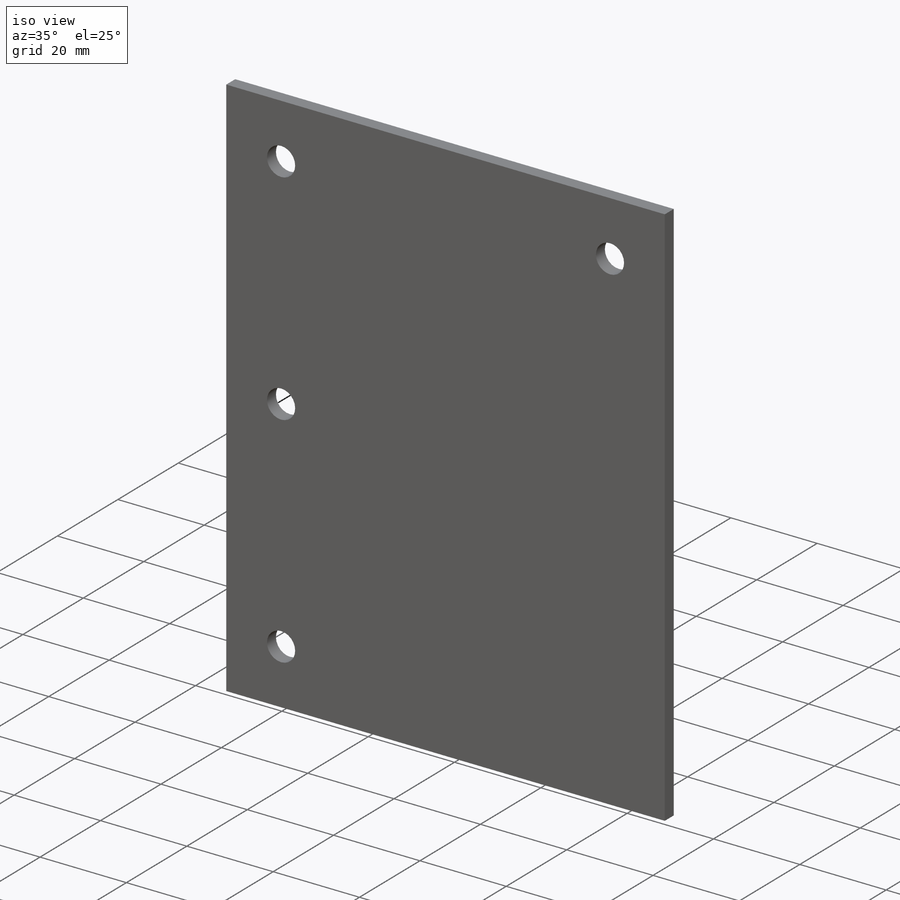
[diagram: iso view]
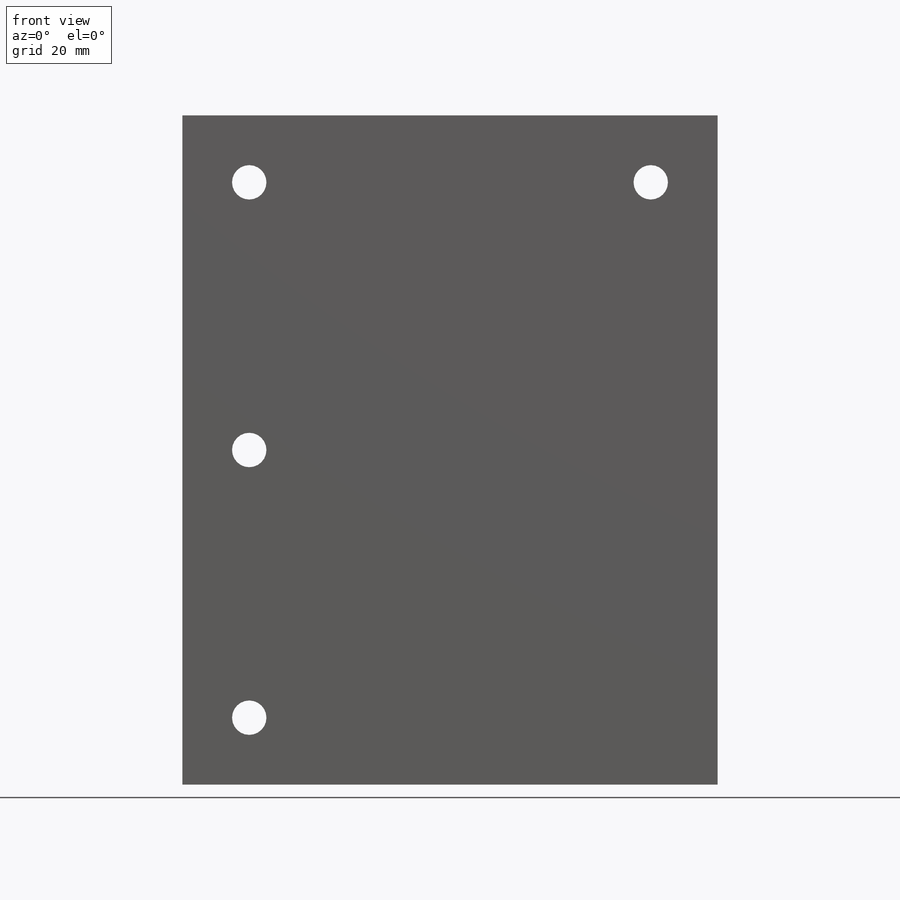
[diagram: front view]
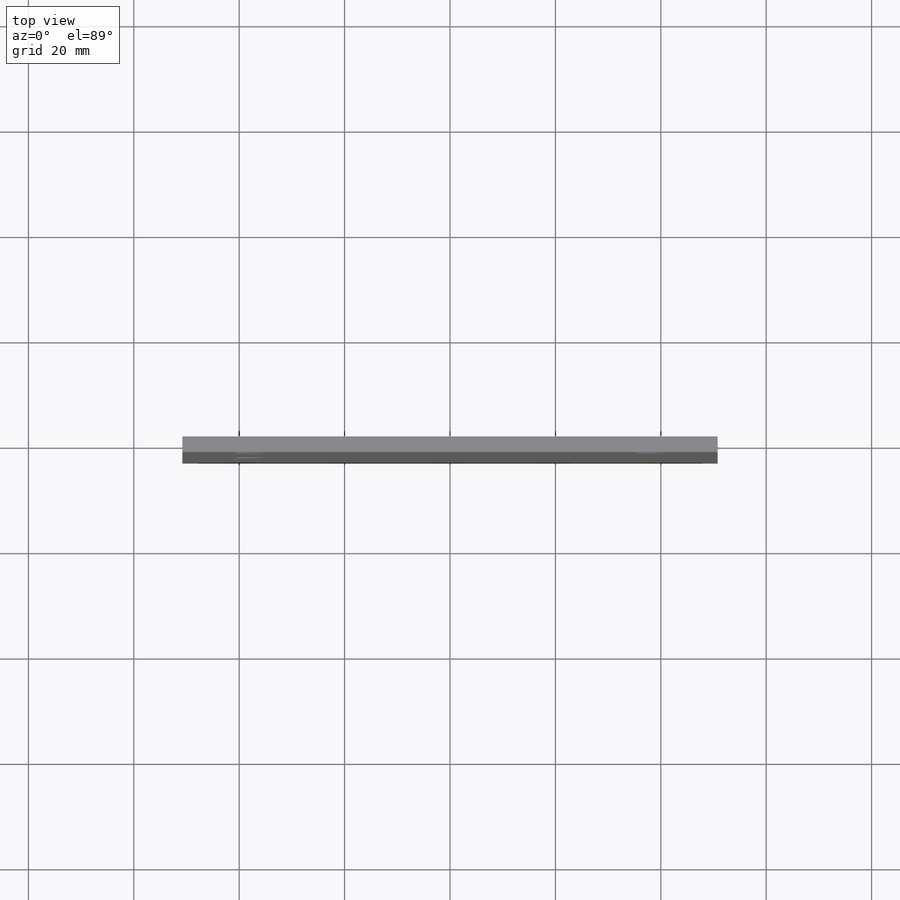
[diagram: top view]
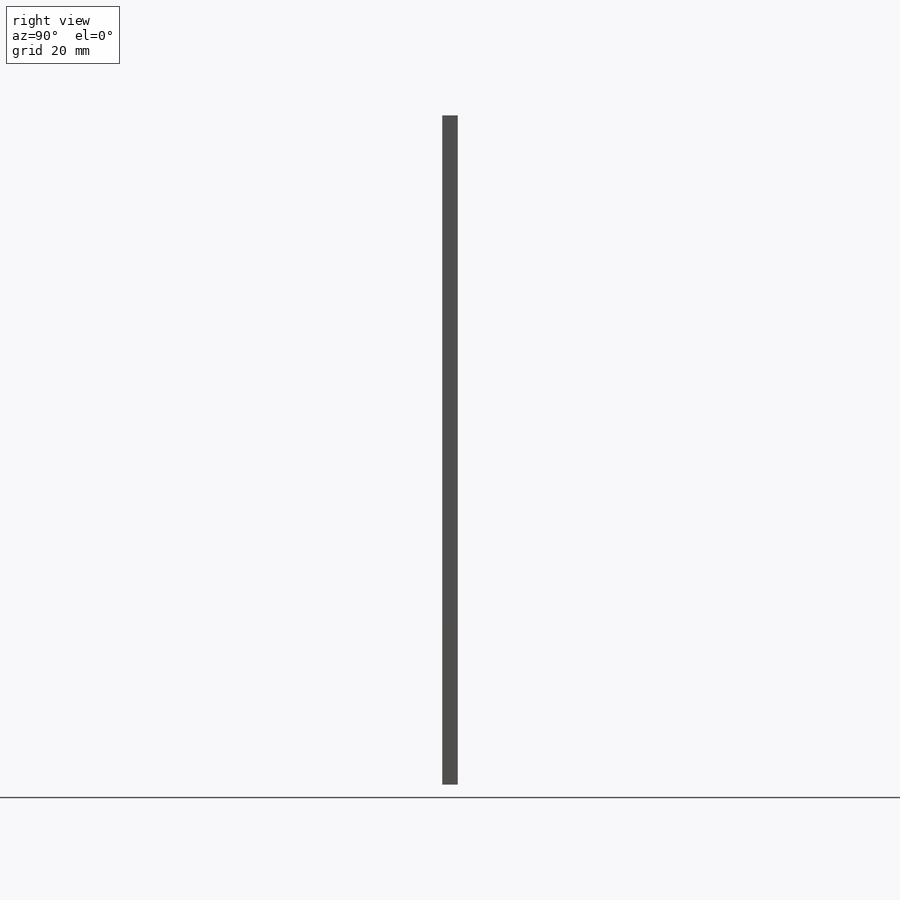
[diagram: right view]
SOLIDWORKS PART (.sldprt)
format: sldprt  version: not decoded by parser v0  size: 146,944 bytes
history: native  units: mm
features: sketch x3, material x1, extrude x1, hole x1 (+12 scaffold rows collapsed)
feature tree (18):
  scaffold x12  (default folders/planes/origin — collapsed)
  material  "Material <not specified>"
  sketch  "Sketch1"  dims[c1.D1=~81.974236mm c1.D2=~88.467245mm c2.D1=127.0mm c2.D2=101.6mm]
  extrude  "Boss-Extrude1"  Depth=2.9591mm
  hole  "1/4 Clearance Hole1"  Diameter=6.5278mm Depth=3.302mm
  sketch  "Sketch3"  dims[c1.D4=~65.651809mm c1.D1=12.7mm c1.D2=12.7mm c1.D3=76.2mm c2.D4=101.6mm]
  sketch  "Sketch2"  dims[hole-wizard template sketch: 47 standard entries collapsed; hole parameters kept: c15.Hole Depth=3.302mm c15.D3=~14.816244mm c15.Drill Angle=118.0deg]
decode coverage: 5 of 5 modeling features carry decoded parameters
note: ~ marks probable driven/reference dimensions
note: suppression state not decoded; provenance and decode notes live in map.json
